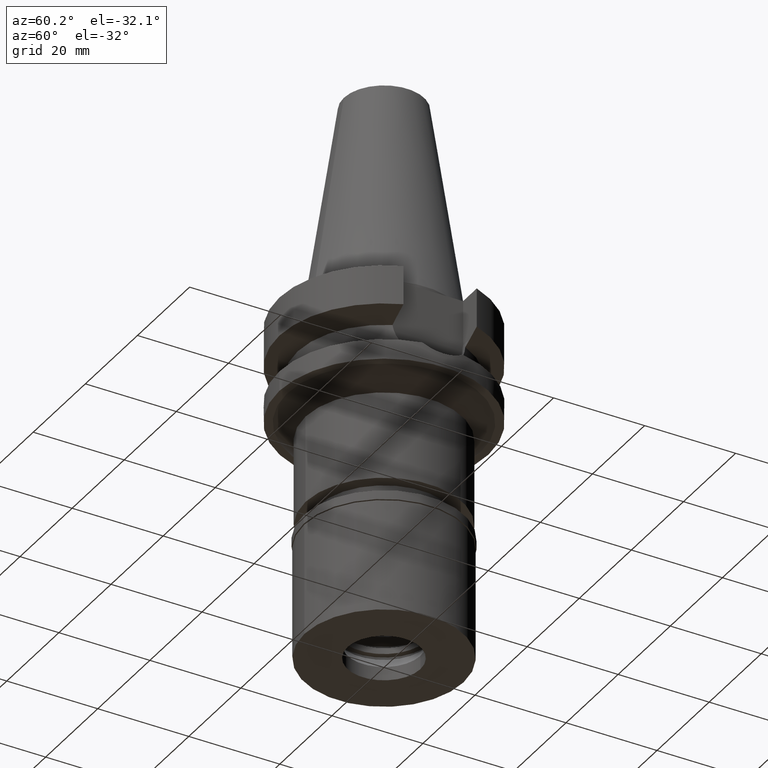
[diagram: clean part render]
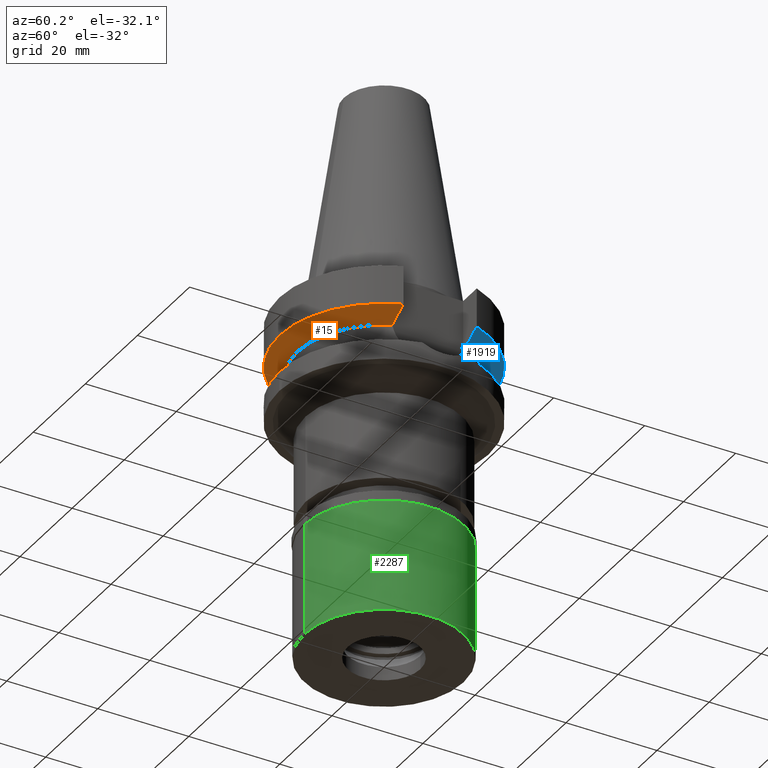
[diagram: same view with three faces highlighted in distinct colors, each labeled with its STEP entity id]
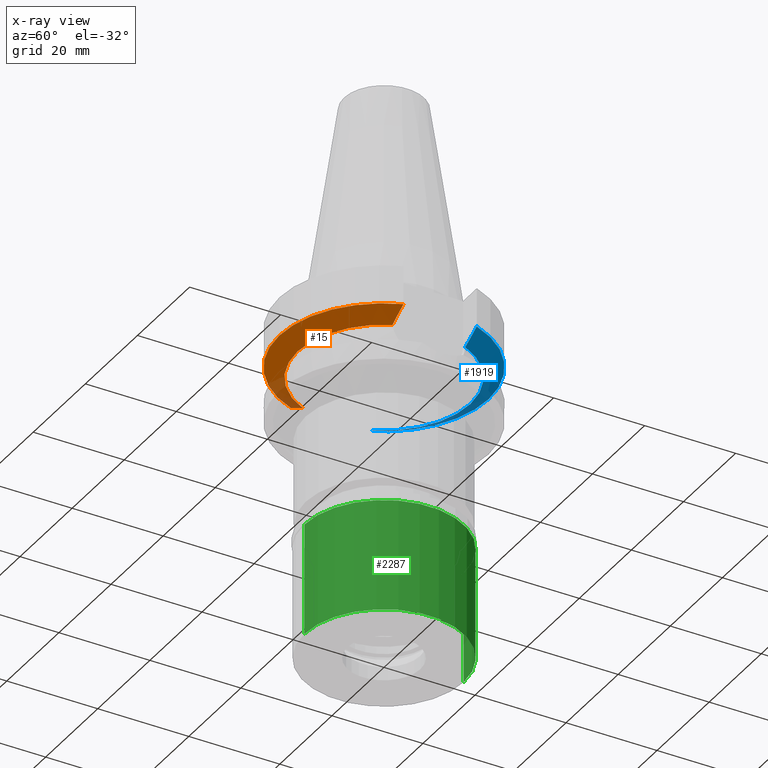
[diagram: x-ray of the same camera — body ghosted, the three highlighted faces saturated]
A machine part, auxiliary view with three faces highlighted in distinct colors.
The next image is the same camera in x-ray (body ghosted, the three faces saturated) — at least one of them is partly hidden behind the body in this view.
Their STEP definitions:

[orange] entity #15 — the highlighted conical surface has half-angle 60 deg.
#7 = B_SPLINE_CURVE_WITH_KNOTS ( 'NONE', 3,
 ( #2752, #1817, #1317, #2230 ),
 .UNSPECIFIED., .F., .F.,
 ( 4, 4 ),
 ( 0.0000000000000000000, 1.000000000000000000 ),
 .UNSPECIFIED. ) ;
#15 = ADVANCED_FACE ( 'NONE', ( #1787 ), #2219, .T. ) ;
#137 = CIRCLE ( 'NONE', #867, 23.00000000000000000 ) ;
#190 = ORIENTED_EDGE ( 'NONE', *, *, #608, .F. ) ;
#305 = ORIENTED_EDGE ( 'NONE', *, *, #1172, .T. ) ;
#366 = CARTESIAN_POINT ( 'NONE',  ( 20.64101735201234078, -8.050004185258087475, -10.05624233374761722 ) ) ;
#397 = EDGE_LOOP ( 'NONE', ( #1235, #190, #1935, #2496, #1994, #305 ) ) ;
#399 = CARTESIAN_POINT ( 'NONE',  ( -17.23531622822000386, -7.996491147958001200, -11.87660607717000083 ) ) ;
#443 = VERTEX_POINT ( 'NONE', #2977 ) ;
#456 = B_SPLINE_CURVE_WITH_KNOTS ( 'NONE', 3,
 ( #1355, #2009, #2724, #615 ),
 .UNSPECIFIED., .F., .F.,
 ( 4, 4 ),
 ( 0.0000000000000000000, 1.000000000000000000 ),
 .UNSPECIFIED. ) ;
#483 = DIRECTION ( 'NONE',  ( 0.0000000000000000000, 0.0000000000000000000, 1.000000000000000000 ) ) ;
#488 = VERTEX_POINT ( 'NONE', #1897 ) ;
#527 = B_SPLINE_CURVE_WITH_KNOTS ( 'NONE', 3,
 ( #1273, #1963, #366, #2217 ),
 .UNSPECIFIED., .F., .F.,
 ( 4, 4 ),
 ( 0.0000000000000000000, 1.000000000000000000 ),
 .UNSPECIFIED. ) ;
#608 = EDGE_CURVE ( 'NONE', #1595, #1200, #2704, .T. ) ;
#615 = CARTESIAN_POINT ( 'NONE',  ( -18.96738966519000158, -8.049994318072998922, -10.95000099924999937 ) ) ;
#867 = AXIS2_PLACEMENT_3D ( 'NONE', #2130, #2175, #2858 ) ;
#945 = EDGE_CURVE ( 'NONE', #1200, #1711, #456, .T. ) ;
#1172 = EDGE_CURVE ( 'NONE', #488, #1711, #1196, .T. ) ;
#1196 = B_SPLINE_CURVE_WITH_KNOTS ( 'NONE', 3,
 ( #2898, #2004, #2499, #1980 ),
 .UNSPECIFIED., .F., .F.,
 ( 4, 4 ),
 ( 0.0000000000000000000, 1.000000000000000000 ),
 .UNSPECIFIED. ) ;
#1200 = VERTEX_POINT ( 'NONE', #399 ) ;
#1235 = ORIENTED_EDGE ( 'NONE', *, *, #945, .F. ) ;
#1237 = DIRECTION ( 'NONE',  ( 0.0000000000000000000, 0.0000000000000000000, -1.000000000000000000 ) ) ;
#1273 = CARTESIAN_POINT ( 'NONE',  ( 18.96736186693999926, -8.050001277873001015, -10.94999977540000025 ) ) ;
#1317 = CARTESIAN_POINT ( 'NONE',  ( 17.72682660392796095, -8.027186146807153477, -11.61172867117429419 ) ) ;
#1355 = CARTESIAN_POINT ( 'NONE',  ( -17.23531622822000386, -7.996491147958001200, -11.87660607717000083 ) ) ;
#1436 = DIRECTION ( 'NONE',  ( 0.0000000000000000000, -1.000000000000000000, 0.0000000000000000000 ) ) ;
#1595 = VERTEX_POINT ( 'NONE', #2962 ) ;
#1666 = CARTESIAN_POINT ( 'NONE',  ( 0.0000000000000000000, 0.0000000000000000000, -11.87660944646999894 ) ) ;
#1711 = VERTEX_POINT ( 'NONE', #2046 ) ;
#1787 = FACE_OUTER_BOUND ( 'NONE', #397, .T. ) ;
#1817 = CARTESIAN_POINT ( 'NONE',  ( 18.30417677519795916, -8.050000009833846448, -11.30245973939780235 ) ) ;
#1897 = CARTESIAN_POINT ( 'NONE',  ( -21.54524325238000060, -8.049999577366000025, -9.567211146628999074 ) ) ;
#1935 = ORIENTED_EDGE ( 'NONE', *, *, #2479, .F. ) ;
#1963 = CARTESIAN_POINT ( 'NONE',  ( 19.78176446227740826, -8.050001299918182696, -10.51717305795227553 ) ) ;
#1968 = CARTESIAN_POINT ( 'NONE',  ( 21.54524309446999908, -8.050000000002000888, -9.567208369710998639 ) ) ;
#1980 = CARTESIAN_POINT ( 'NONE',  ( -18.96738966519000158, -8.049994318072998922, -10.95000099924999937 ) ) ;
#1984 = AXIS2_PLACEMENT_3D ( 'NONE', #2721, #483, #2777 ) ;
#1994 = ORIENTED_EDGE ( 'NONE', *, *, #2562, .F. ) ;
#2004 = CARTESIAN_POINT ( 'NONE',  ( -20.64098922447007922, -8.049999155425632935, -10.05625859811074996 ) ) ;
#2009 = CARTESIAN_POINT ( 'NONE',  ( -17.72598979704696021, -8.027133611820556069, -11.61218201620528490 ) ) ;
#2046 = CARTESIAN_POINT ( 'NONE',  ( -18.96738966519000158, -8.049994318072998922, -10.95000099924999937 ) ) ;
#2130 = CARTESIAN_POINT ( 'NONE',  ( 0.0000000000000000000, 0.0000000000000000000, -9.567208369710998639 ) ) ;
#2175 = DIRECTION ( 'NONE',  ( 0.0000000000000000000, 0.0000000000000000000, 1.000000000000000000 ) ) ;
#2217 = CARTESIAN_POINT ( 'NONE',  ( 21.54524309446999908, -8.050000000002000888, -9.567208369710998639 ) ) ;
#2219 = CONICAL_SURFACE ( 'NONE', #1984, 21.00000000000000000, 1.047197551196400456 ) ;
#2224 = EDGE_CURVE ( 'NONE', #443, #2669, #527, .T. ) ;
#2230 = CARTESIAN_POINT ( 'NONE',  ( 17.23531135313000107, -7.996501749111999402, -11.87660739354000050 ) ) ;
#2262 = AXIS2_PLACEMENT_3D ( 'NONE', #1666, #1237, #1436 ) ;
#2479 = EDGE_CURVE ( 'NONE', #443, #1595, #7, .T. ) ;
#2496 = ORIENTED_EDGE ( 'NONE', *, *, #2224, .T. ) ;
#2499 = CARTESIAN_POINT ( 'NONE',  ( -19.78174442230803365, -8.049991903457407005, -10.51718567404478755 ) ) ;
#2562 = EDGE_CURVE ( 'NONE', #488, #2669, #137, .T. ) ;
#2669 = VERTEX_POINT ( 'NONE', #1968 ) ;
#2704 = CIRCLE ( 'NONE', #2262, 19.00000000000000000 ) ;
#2721 = CARTESIAN_POINT ( 'NONE',  ( 0.0000000000000000000, 0.0000000000000000000, -10.72190890808999875 ) ) ;
#2724 = CARTESIAN_POINT ( 'NONE',  ( -18.30334760937029515, -8.049999956192346318, -11.30291655530395722 ) ) ;
#2752 = CARTESIAN_POINT ( 'NONE',  ( 18.96736186693999926, -8.050001277873001015, -10.94999977540000025 ) ) ;
#2777 = DIRECTION ( 'NONE',  ( 0.0000000000000000000, 1.000000000000000000, 0.0000000000000000000 ) ) ;
#2858 = DIRECTION ( 'NONE',  ( 0.0000000000000000000, -1.000000000000000000, 0.0000000000000000000 ) ) ;
#2898 = CARTESIAN_POINT ( 'NONE',  ( -21.54524325238000060, -8.049999577366000025, -9.567211146628999074 ) ) ;
#2962 = CARTESIAN_POINT ( 'NONE',  ( 17.23531135313000107, -7.996501749111999402, -11.87660739354000050 ) ) ;
#2977 = CARTESIAN_POINT ( 'NONE',  ( 18.96736186693999926, -8.050001277873001015, -10.94999977540000025 ) ) ;

[blue] entity #1919 — the highlighted conical surface has half-angle 60 deg.
#87 = AXIS2_PLACEMENT_3D ( 'NONE', #2002, #2743, #1332 ) ;
#204 = EDGE_LOOP ( 'NONE', ( #1885, #395, #1699, #1775, #502, #459 ) ) ;
#206 = B_SPLINE_CURVE_WITH_KNOTS ( 'NONE', 3,
 ( #2413, #1295, #1970, #327 ),
 .UNSPECIFIED., .F., .F.,
 ( 4, 4 ),
 ( 0.0000000000000000000, 1.000000000000000000 ),
 .UNSPECIFIED. ) ;
#309 = VERTEX_POINT ( 'NONE', #808 ) ;
#327 = CARTESIAN_POINT ( 'NONE',  ( -21.54524231189000005, 8.050002094537999753, -9.567194606710000215 ) ) ;
#395 = ORIENTED_EDGE ( 'NONE', *, *, #1377, .T. ) ;
#401 = DIRECTION ( 'NONE',  ( 0.0000000000000000000, 1.000000000000000000, 0.0000000000000000000 ) ) ;
#459 = ORIENTED_EDGE ( 'NONE', *, *, #889, .T. ) ;
#502 = ORIENTED_EDGE ( 'NONE', *, *, #529, .F. ) ;
#515 = CIRCLE ( 'NONE', #87, 19.00000000000000000 ) ;
#529 = EDGE_CURVE ( 'NONE', #309, #2374, #1008, .T. ) ;
#604 = CARTESIAN_POINT ( 'NONE',  ( 17.72598986751016881, 8.027133616107310132, -11.61218197945228070 ) ) ;
#626 = FACE_OUTER_BOUND ( 'NONE', #204, .T. ) ;
#636 = CARTESIAN_POINT ( 'NONE',  ( 18.96738966530000070, 8.049994318182998043, -10.95000099923000114 ) ) ;
#697 = CARTESIAN_POINT ( 'NONE',  ( 19.78174442298433533, 8.049991903556987793, -10.51718567366341262 ) ) ;
#726 = CARTESIAN_POINT ( 'NONE',  ( -18.30417674179421539, 8.050000009835159176, -11.30245975725131125 ) ) ;
#736 = CARTESIAN_POINT ( 'NONE',  ( 0.0000000000000000000, 0.0000000000000000000, -9.567208369710998639 ) ) ;
#808 = CARTESIAN_POINT ( 'NONE',  ( -18.96736186713000194, 8.050001278041001740, -10.94999977536999936 ) ) ;
#814 = CARTESIAN_POINT ( 'NONE',  ( 17.23531622902000038, 7.996491146276001771, -11.87660607782000000 ) ) ;
#820 = CONICAL_SURFACE ( 'NONE', #2422, 21.00000000000000000, 1.047197551196400456 ) ;
#848 = CARTESIAN_POINT ( 'NONE',  ( -17.23531135276000015, 7.996501749881999466, -11.87660739337000138 ) ) ;
#889 = EDGE_CURVE ( 'NONE', #309, #2825, #206, .T. ) ;
#1008 = B_SPLINE_CURVE_WITH_KNOTS ( 'NONE', 3,
 ( #1701, #726, #1476, #2864 ),
 .UNSPECIFIED., .F., .F.,
 ( 4, 4 ),
 ( 0.0000000000000000000, 1.000000000000000000 ),
 .UNSPECIFIED. ) ;
#1031 = VERTEX_POINT ( 'NONE', #2344 ) ;
#1124 = B_SPLINE_CURVE_WITH_KNOTS ( 'NONE', 3,
 ( #2436, #604, #2730, #636 ),
 .UNSPECIFIED., .F., .F.,
 ( 4, 4 ),
 ( 0.0000000000000000000, 1.000000000000000000 ),
 .UNSPECIFIED. ) ;
#1218 = EDGE_CURVE ( 'NONE', #2779, #1031, #1124, .T. ) ;
#1295 = CARTESIAN_POINT ( 'NONE',  ( -19.78176599972492156, 8.050001300064966614, -10.51717224081960822 ) ) ;
#1323 = CARTESIAN_POINT ( 'NONE',  ( 21.54524325238000060, 8.049999577379001181, -9.567211146543000311 ) ) ;
#1332 = DIRECTION ( 'NONE',  ( 0.0000000000000000000, 1.000000000000000000, 0.0000000000000000000 ) ) ;
#1377 = EDGE_CURVE ( 'NONE', #1815, #1031, #2424, .T. ) ;
#1382 = CARTESIAN_POINT ( 'NONE',  ( -21.54524231189000005, 8.050002094537999753, -9.567194606710000215 ) ) ;
#1434 = CARTESIAN_POINT ( 'NONE',  ( 21.54524325238000060, 8.049999577379001181, -9.567211146543000311 ) ) ;
#1476 = CARTESIAN_POINT ( 'NONE',  ( -17.72682657033755049, 8.027186144752359809, -11.61172868883279641 ) ) ;
#1571 = DIRECTION ( 'NONE',  ( 0.0000000000000000000, 1.000000000000000000, 0.0000000000000000000 ) ) ;
#1617 = CARTESIAN_POINT ( 'NONE',  ( 18.96738966530000070, 8.049994318182998043, -10.95000099923000114 ) ) ;
#1699 = ORIENTED_EDGE ( 'NONE', *, *, #1218, .F. ) ;
#1701 = CARTESIAN_POINT ( 'NONE',  ( -18.96736186713000194, 8.050001278041001740, -10.94999977536999936 ) ) ;
#1775 = ORIENTED_EDGE ( 'NONE', *, *, #2341, .F. ) ;
#1815 = VERTEX_POINT ( 'NONE', #1434 ) ;
#1885 = ORIENTED_EDGE ( 'NONE', *, *, #2270, .F. ) ;
#1919 = ADVANCED_FACE ( 'NONE', ( #626 ), #820, .T. ) ;
#1970 = CARTESIAN_POINT ( 'NONE',  ( -20.64102060695733343, 8.050004185766361786, -10.05624058759408967 ) ) ;
#2002 = CARTESIAN_POINT ( 'NONE',  ( 0.0000000000000000000, 0.0000000000000000000, -11.87660944646999894 ) ) ;
#2050 = DIRECTION ( 'NONE',  ( 0.0000000000000000000, 0.0000000000000000000, 1.000000000000000000 ) ) ;
#2270 = EDGE_CURVE ( 'NONE', #1815, #2825, #2372, .T. ) ;
#2338 = DIRECTION ( 'NONE',  ( 0.0000000000000000000, 0.0000000000000000000, 1.000000000000000000 ) ) ;
#2341 = EDGE_CURVE ( 'NONE', #2374, #2779, #515, .T. ) ;
#2344 = CARTESIAN_POINT ( 'NONE',  ( 18.96738966530000070, 8.049994318182998043, -10.95000099923000114 ) ) ;
#2372 = CIRCLE ( 'NONE', #2715, 23.00000000000000000 ) ;
#2374 = VERTEX_POINT ( 'NONE', #848 ) ;
#2413 = CARTESIAN_POINT ( 'NONE',  ( -18.96736186713000194, 8.050001278041001740, -10.94999977536999936 ) ) ;
#2422 = AXIS2_PLACEMENT_3D ( 'NONE', #2490, #2050, #401 ) ;
#2424 = B_SPLINE_CURVE_WITH_KNOTS ( 'NONE', 3,
 ( #1323, #2776, #697, #1617 ),
 .UNSPECIFIED., .F., .F.,
 ( 4, 4 ),
 ( 0.0000000000000000000, 1.000000000000000000 ),
 .UNSPECIFIED. ) ;
#2436 = CARTESIAN_POINT ( 'NONE',  ( 17.23531622902000038, 7.996491146276001771, -11.87660607782000000 ) ) ;
#2490 = CARTESIAN_POINT ( 'NONE',  ( 0.0000000000000000000, 0.0000000000000000000, -10.72190890808999875 ) ) ;
#2715 = AXIS2_PLACEMENT_3D ( 'NONE', #736, #2338, #1571 ) ;
#2730 = CARTESIAN_POINT ( 'NONE',  ( 18.30334767960350106, 8.049999956193227391, -11.30291651801537789 ) ) ;
#2743 = DIRECTION ( 'NONE',  ( 0.0000000000000000000, 0.0000000000000000000, -1.000000000000000000 ) ) ;
#2776 = CARTESIAN_POINT ( 'NONE',  ( 20.64098922513857204, 8.049999155450739963, -10.05625859774404063 ) ) ;
#2779 = VERTEX_POINT ( 'NONE', #814 ) ;
#2825 = VERTEX_POINT ( 'NONE', #1382 ) ;
#2864 = CARTESIAN_POINT ( 'NONE',  ( -17.23531135276000015, 7.996501749881999466, -11.87660739337000138 ) ) ;

[green] entity #2287 — the highlighted cylindrical surface (partial cylindrical patch) has radius 17.5 mm, axis along (0, 0, -1).
#42 = AXIS2_PLACEMENT_3D ( 'NONE', #1902, #2850, #758 ) ;
#398 = DIRECTION ( 'NONE',  ( 0.0000000000000000000, -1.000000000000000000, 0.0000000000000000000 ) ) ;
#404 = CARTESIAN_POINT ( 'NONE',  ( 0.0000000000000000000, -17.50000000000000000, -2.100000000000000089 ) ) ;
#460 = AXIS2_PLACEMENT_3D ( 'NONE', #2210, #1330, #864 ) ;
#578 = FACE_OUTER_BOUND ( 'NONE', #1896, .T. ) ;
#668 = EDGE_CURVE ( 'NONE', #2892, #2178, #1992, .T. ) ;
#721 = EDGE_CURVE ( 'NONE', #2892, #1017, #1443, .T. ) ;
#737 = ORIENTED_EDGE ( 'NONE', *, *, #979, .T. ) ;
#758 = DIRECTION ( 'NONE',  ( 0.0000000000000000000, -1.000000000000000000, 0.0000000000000000000 ) ) ;
#846 = DIRECTION ( 'NONE',  ( 0.0000000000000000000, 0.0000000000000000000, -1.000000000000000000 ) ) ;
#864 = DIRECTION ( 'NONE',  ( 0.0000000000000000000, 1.000000000000000000, 0.0000000000000000000 ) ) ;
#979 = EDGE_CURVE ( 'NONE', #1017, #2558, #1383, .T. ) ;
#1017 = VERTEX_POINT ( 'NONE', #2240 ) ;
#1192 = DIRECTION ( 'NONE',  ( 0.0000000000000000000, 0.0000000000000000000, -1.000000000000000000 ) ) ;
#1330 = DIRECTION ( 'NONE',  ( 0.0000000000000000000, 0.0000000000000000000, -1.000000000000000000 ) ) ;
#1383 = LINE ( 'NONE', #404, #2708 ) ;
#1404 = AXIS2_PLACEMENT_3D ( 'NONE', #2781, #2709, #398 ) ;
#1443 = CIRCLE ( 'NONE', #460, 17.50000000000000000 ) ;
#1505 = CARTESIAN_POINT ( 'NONE',  ( 0.0000000000000000000, 17.50000000000000000, -2.100000000000000089 ) ) ;
#1668 = CYLINDRICAL_SURFACE ( 'NONE', #1404, 17.50000000000000000 ) ;
#1791 = CIRCLE ( 'NONE', #42, 17.50000000000000000 ) ;
#1896 = EDGE_LOOP ( 'NONE', ( #2290, #737, #2964, #2757 ) ) ;
#1902 = CARTESIAN_POINT ( 'NONE',  ( 0.0000000000000000000, 0.0000000000000000000, -26.70000000000000284 ) ) ;
#1943 = CARTESIAN_POINT ( 'NONE',  ( 0.0000000000000000000, 17.50000000000000000, -26.70000000000000284 ) ) ;
#1992 = LINE ( 'NONE', #1505, #2753 ) ;
#2178 = VERTEX_POINT ( 'NONE', #1943 ) ;
#2210 = CARTESIAN_POINT ( 'NONE',  ( 0.0000000000000000000, 0.0000000000000000000, -2.100000000000000089 ) ) ;
#2229 = EDGE_CURVE ( 'NONE', #2558, #2178, #1791, .T. ) ;
#2240 = CARTESIAN_POINT ( 'NONE',  ( 0.0000000000000000000, -17.50000000000000000, -2.100000000000000089 ) ) ;
#2287 = ADVANCED_FACE ( 'NONE', ( #578 ), #1668, .T. ) ;
#2290 = ORIENTED_EDGE ( 'NONE', *, *, #721, .T. ) ;
#2328 = CARTESIAN_POINT ( 'NONE',  ( 0.0000000000000000000, 17.50000000000000000, -2.100000000000000089 ) ) ;
#2385 = CARTESIAN_POINT ( 'NONE',  ( 0.0000000000000000000, -17.50000000000000000, -26.70000000000000284 ) ) ;
#2558 = VERTEX_POINT ( 'NONE', #2385 ) ;
#2708 = VECTOR ( 'NONE', #1192, 1000.000000000000000 ) ;
#2709 = DIRECTION ( 'NONE',  ( 0.0000000000000000000, 0.0000000000000000000, -1.000000000000000000 ) ) ;
#2753 = VECTOR ( 'NONE', #846, 1000.000000000000000 ) ;
#2757 = ORIENTED_EDGE ( 'NONE', *, *, #668, .F. ) ;
#2781 = CARTESIAN_POINT ( 'NONE',  ( 0.0000000000000000000, 0.0000000000000000000, 0.0000000000000000000 ) ) ;
#2850 = DIRECTION ( 'NONE',  ( 0.0000000000000000000, 0.0000000000000000000, 1.000000000000000000 ) ) ;
#2892 = VERTEX_POINT ( 'NONE', #2328 ) ;
#2964 = ORIENTED_EDGE ( 'NONE', *, *, #2229, .T. ) ;